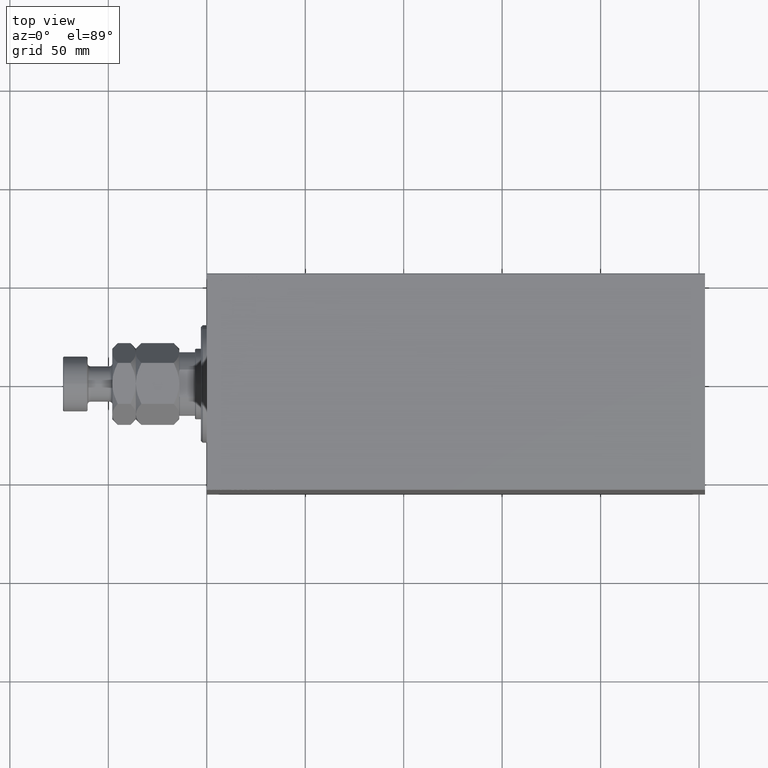
[diagram: clean part render]
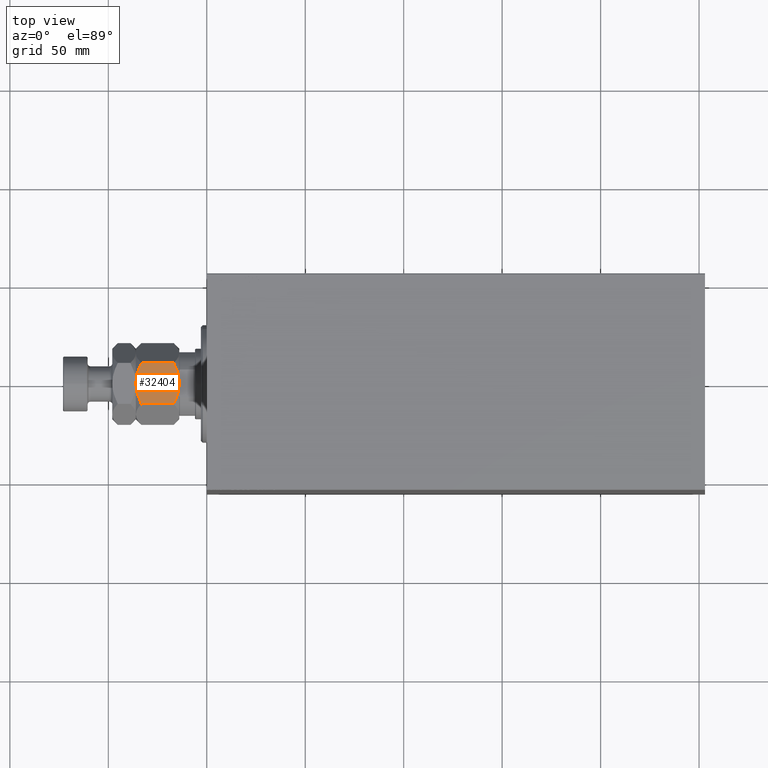
[diagram: same view with one face highlighted and labeled with its STEP entity id]
A machine part, top view. The second image highlights one B-rep face of the part: STEP entity #32404.
In plain terms, the highlighted planar face has unit normal (0, 0, -1).
Its self-contained STEP definition (entity closure, byte-faithful):
#958 = CARTESIAN_POINT ( 'NONE',  ( 18.00000000000000000, -9.585844502997483474, 2.381379519618630702 ) ) ;
#1188 = CARTESIAN_POINT ( 'NONE',  ( 18.00000000000000000, -0.9155406990339320927, 0.01761543672925008908 ) ) ;
#1948 = B_SPLINE_CURVE_WITH_KNOTS ( 'NONE', 3,
 ( #19699, #8187, #25940, #5411, #39735, #23151, #33053, #26394, #19468, #43189 ),
 .UNSPECIFIED., .F., .F.,
 ( 4, 2, 2, 2, 4 ),
 ( 0.02782233635826645082, 0.03053256470195755967, 0.03188767887380311583, 0.03324279304564867199, 0.03866324973303089663 ),
 .UNSPECIFIED. ) ;
#4711 = CARTESIAN_POINT ( 'NONE',  ( 18.00000000000000355, 7.070713019734867544, 20.67653729751676650 ) ) ;
#4887 = CARTESIAN_POINT ( 'NONE',  ( 18.00000000000000000, -10.39230484541326760, 22.00000000000000000 ) ) ;
#4915 = ORIENTED_EDGE ( 'NONE', *, *, #11288, .T. ) ;
#5075 = DIRECTION ( 'NONE',  ( -0.000000000000000000, -0.000000000000000000, -1.000000000000000000 ) ) ;
#5411 = CARTESIAN_POINT ( 'NONE',  ( 17.99999999999999289, -7.496347219517971006, 20.50523559702920195 ) ) ;
#5978 = FACE_OUTER_BOUND ( 'NONE', #7625, .T. ) ;
#7073 = EDGE_CURVE ( 'NONE', #17092, #23987, #33915, .T. ) ;
#7625 = EDGE_LOOP ( 'NONE', ( #20446, #25148, #9917, #16811, #4915, #37601 ) ) ;
#7707 = CARTESIAN_POINT ( 'NONE',  ( 18.00000000000000000, 9.585844502997481698, 19.61862048038136663 ) ) ;
#7871 = CARTESIAN_POINT ( 'NONE',  ( 18.00000000000000355, -8.761367480501965233, 2.004069294401318757 ) ) ;
#7912 = EDGE_CURVE ( 'NONE', #31605, #23215, #1948, .T. ) ;
#8187 = CARTESIAN_POINT ( 'NONE',  ( 18.00000000000000355, -9.585738860786738869, 19.61867330148673716 ) ) ;
#8460 = CARTESIAN_POINT ( 'NONE',  ( 18.00000000000000000, 8.763088818352407827, 2.004854301028772934 ) ) ;
#8697 = CARTESIAN_POINT ( 'NONE',  ( 18.00000000000000000, 10.39230484541326227, 2.784609690826518325 ) ) ;
#9917 = ORIENTED_EDGE ( 'NONE', *, *, #35699, .F. ) ;
#10341 = CARTESIAN_POINT ( 'NONE',  ( 18.00000000000000000, -10.39230484541326760, 22.00000000000000000 ) ) ;
#11288 = EDGE_CURVE ( 'NONE', #31605, #35402, #11806, .T. ) ;
#11703 = CARTESIAN_POINT ( 'NONE',  ( 18.00000000000000000, 7.068075135443436352, 1.333788718270820572 ) ) ;
#11806 = LINE ( 'NONE', #4887, #13046 ) ;
#11859 = CARTESIAN_POINT ( 'NONE',  ( 17.99999999999999645, 0.9155406990339389761, 21.98238456327074175 ) ) ;
#13046 = VECTOR ( 'NONE', #29766, 1000.000000000000000 ) ;
#13678 = VERTEX_POINT ( 'NONE', #17113 ) ;
#14632 = CARTESIAN_POINT ( 'NONE',  ( 18.00000000000000000, 3.606660380382275655, 21.66338348051975871 ) ) ;
#15618 = CARTESIAN_POINT ( 'NONE',  ( 18.00000000000000000, 9.585738860786735316, 2.381326698513254403 ) ) ;
#16063 = CARTESIAN_POINT ( 'NONE',  ( 18.00000000000000000, -10.39230484541326760, 2.784609690826518769 ) ) ;
#16076 = CARTESIAN_POINT ( 'NONE',  ( 18.00000000000000000, 3.606961701950820665, 0.2821992827987605534 ) ) ;
#16169 = B_SPLINE_CURVE_WITH_KNOTS ( 'NONE', 3,
 ( #22000, #29362, #11859, #36255, #25916, #14632, #42709, #19004, #4711, #39032, #7707, #36031 ),
 .UNSPECIFIED., .F., .F.,
 ( 4, 2, 2, 2, 2, 4 ),
 ( 0.03866324973303089663, 0.04001676336829056158, 0.04137027700355022652, 0.04407730427406955642, 0.04678433154458888632, 0.04949135881510821622 ),
 .UNSPECIFIED. ) ;
#16319 = VECTOR ( 'NONE', #5075, 1000.000000000000000 ) ;
#16811 = ORIENTED_EDGE ( 'NONE', *, *, #7912, .F. ) ;
#17092 = VERTEX_POINT ( 'NONE', #19272 ) ;
#17113 = CARTESIAN_POINT ( 'NONE',  ( 18.00000000000000000, 10.39230484541326227, 19.21539030917347901 ) ) ;
#19004 = CARTESIAN_POINT ( 'NONE',  ( 18.00000000000000000, 6.216134505391694987, 20.97498393630430513 ) ) ;
#19272 = CARTESIAN_POINT ( 'NONE',  ( 18.00000000000000000, 10.39230484541326227, 2.784609690826518325 ) ) ;
#19379 = CARTESIAN_POINT ( 'NONE',  ( 18.00000000000000000, -1.820915739938816724, 0.08623745797432426363 ) ) ;
#19468 = CARTESIAN_POINT ( 'NONE',  ( 18.00000000000000000, -1.830228188859408522, 22.00000000000001421 ) ) ;
#19699 = CARTESIAN_POINT ( 'NONE',  ( 18.00000000000000000, -10.39230484541326760, 19.21539030917347901 ) ) ;
#19750 = CARTESIAN_POINT ( 'NONE',  ( 18.00000000000000000, 0.000000000000000000, 0.000000000000000000 ) ) ;
#20446 = ORIENTED_EDGE ( 'NONE', *, *, #7073, .F. ) ;
#22000 = CARTESIAN_POINT ( 'NONE',  ( 17.99999999999999645, 0.000000000000000000, 22.00000000000000000 ) ) ;
#22385 = CARTESIAN_POINT ( 'NONE',  ( 18.00000000000000000, -10.39230484541326760, 2.784609690826518769 ) ) ;
#22527 = CARTESIAN_POINT ( 'NONE',  ( 18.00000000000000355, 1.830228188859414074, -1.798420353610330795E-14 ) ) ;
#23151 = CARTESIAN_POINT ( 'NONE',  ( 18.00000000000001066, -6.209292796908481904, 20.96337695072464768 ) ) ;
#23215 = VERTEX_POINT ( 'NONE', #32778 ) ;
#23365 = AXIS2_PLACEMENT_3D ( 'NONE', #10341, #34738, #45338 ) ;
#23987 = VERTEX_POINT ( 'NONE', #38789 ) ;
#25148 = ORIENTED_EDGE ( 'NONE', *, *, #43516, .F. ) ;
#25383 = CARTESIAN_POINT ( 'NONE',  ( 18.00000000000000711, -6.216134505391689657, 1.025016063695673774 ) ) ;
#25850 = CARTESIAN_POINT ( 'NONE',  ( 18.00000000000000000, -2.269920501599955287, 0.1372108013979898566 ) ) ;
#25916 = CARTESIAN_POINT ( 'NONE',  ( 18.00000000000000000, 2.269920501599961060, 21.86278919860200531 ) ) ;
#25940 = CARTESIAN_POINT ( 'NONE',  ( 18.00000000000000000, -8.763088818352407827, 19.99514569897121774 ) ) ;
#26394 = CARTESIAN_POINT ( 'NONE',  ( 18.00000000000000000, -3.606961701950823329, 21.71780071720124283 ) ) ;
#29058 = CARTESIAN_POINT ( 'NONE',  ( 18.00000000000000355, -0.4570166227920092750, -1.873806285915962579E-14 ) ) ;
#29362 = CARTESIAN_POINT ( 'NONE',  ( 18.00000000000000355, 0.4570166227920159918, 22.00000000000001776 ) ) ;
#29766 = DIRECTION ( 'NONE',  ( -0.000000000000000000, -0.000000000000000000, -1.000000000000000000 ) ) ;
#31296 = PLANE ( 'NONE',  #23365 ) ;
#31605 = VERTEX_POINT ( 'NONE', #43010 ) ;
#32404 = ADVANCED_FACE ( 'NONE', ( #5978 ), #31296, .F. ) ;
#32778 = CARTESIAN_POINT ( 'NONE',  ( 17.99999999999999645, 0.000000000000000000, 22.00000000000000000 ) ) ;
#32935 = LINE ( 'NONE', #39840, #16319 ) ;
#33053 = CARTESIAN_POINT ( 'NONE',  ( 18.00000000000000355, -5.777644679957246510, 21.10005375890245460 ) ) ;
#33325 = CARTESIAN_POINT ( 'NONE',  ( 18.00000000000000000, 6.209292796908475687, 1.036623049275358532 ) ) ;
#33405 = CARTESIAN_POINT ( 'NONE',  ( 18.00000000000000000, -4.484118396622225333, 0.5315467738039385548 ) ) ;
#33915 = B_SPLINE_CURVE_WITH_KNOTS ( 'NONE', 3,
 ( #8697, #15618, #8460, #40686, #11703, #33325, #39785, #16076, #22527, #19750 ),
 .UNSPECIFIED., .F., .F.,
 ( 4, 2, 2, 2, 4 ),
 ( 0.02782233635826644735, 0.03053256470195755620, 0.03188767887380310889, 0.03324279304564866505, 0.03866324973303088275 ),
 .UNSPECIFIED. ) ;
#34738 = DIRECTION ( 'NONE',  ( -1.000000000000000000, 0.000000000000000000, 0.000000000000000000 ) ) ;
#35402 = VERTEX_POINT ( 'NONE', #16063 ) ;
#35699 = EDGE_CURVE ( 'NONE', #23215, #13678, #16169, .T. ) ;
#36031 = CARTESIAN_POINT ( 'NONE',  ( 18.00000000000000000, 10.39230484541326227, 19.21539030917347901 ) ) ;
#36255 = CARTESIAN_POINT ( 'NONE',  ( 18.00000000000000355, 1.820915739938823608, 21.91376254202567253 ) ) ;
#36412 = CARTESIAN_POINT ( 'NONE',  ( 18.00000000000000000, 0.000000000000000000, 0.000000000000000000 ) ) ;
#36779 = EDGE_CURVE ( 'NONE', #23987, #35402, #39719, .T. ) ;
#37601 = ORIENTED_EDGE ( 'NONE', *, *, #36779, .F. ) ;
#38789 = CARTESIAN_POINT ( 'NONE',  ( 18.00000000000000000, 0.000000000000000000, 0.000000000000000000 ) ) ;
#39032 = CARTESIAN_POINT ( 'NONE',  ( 18.00000000000000000, 8.761367480501970562, 19.99593070559867058 ) ) ;
#39415 = CARTESIAN_POINT ( 'NONE',  ( 18.00000000000000000, -7.070713019734860438, 1.323462702483229725 ) ) ;
#39719 = B_SPLINE_CURVE_WITH_KNOTS ( 'NONE', 3,
 ( #36412, #29058, #1188, #19379, #25850, #39871, #33405, #25383, #39415, #7871, #958, #22385 ),
 .UNSPECIFIED., .F., .F.,
 ( 4, 2, 2, 2, 2, 4 ),
 ( 0.03866324973303088275, 0.04001676336829054770, 0.04137027700355021265, 0.04407730427406954254, 0.04678433154458887938, 0.04949135881510820928 ),
 .UNSPECIFIED. ) ;
#39735 = CARTESIAN_POINT ( 'NONE',  ( 18.00000000000000000, -7.068075135443438128, 20.66621128172917210 ) ) ;
#39785 = CARTESIAN_POINT ( 'NONE',  ( 18.00000000000000355, 5.777644679957243845, 0.8999462410975483939 ) ) ;
#39840 = CARTESIAN_POINT ( 'NONE',  ( 18.00000000000000000, 10.39230484541326227, 22.00000000000000000 ) ) ;
#39871 = CARTESIAN_POINT ( 'NONE',  ( 18.00000000000000355, -3.606660380382270770, 0.3366165194802388516 ) ) ;
#40686 = CARTESIAN_POINT ( 'NONE',  ( 17.99999999999999645, 7.496347219517969229, 1.494764402970787609 ) ) ;
#42709 = CARTESIAN_POINT ( 'NONE',  ( 18.00000000000000000, 4.484118396622231550, 21.46845322619605057 ) ) ;
#43010 = CARTESIAN_POINT ( 'NONE',  ( 18.00000000000000000, -10.39230484541326760, 19.21539030917347901 ) ) ;
#43189 = CARTESIAN_POINT ( 'NONE',  ( 17.99999999999999645, 0.000000000000000000, 22.00000000000000000 ) ) ;
#43516 = EDGE_CURVE ( 'NONE', #13678, #17092, #32935, .T. ) ;
#45338 = DIRECTION ( 'NONE',  ( 0.000000000000000000, 0.000000000000000000, 1.000000000000000000 ) ) ;